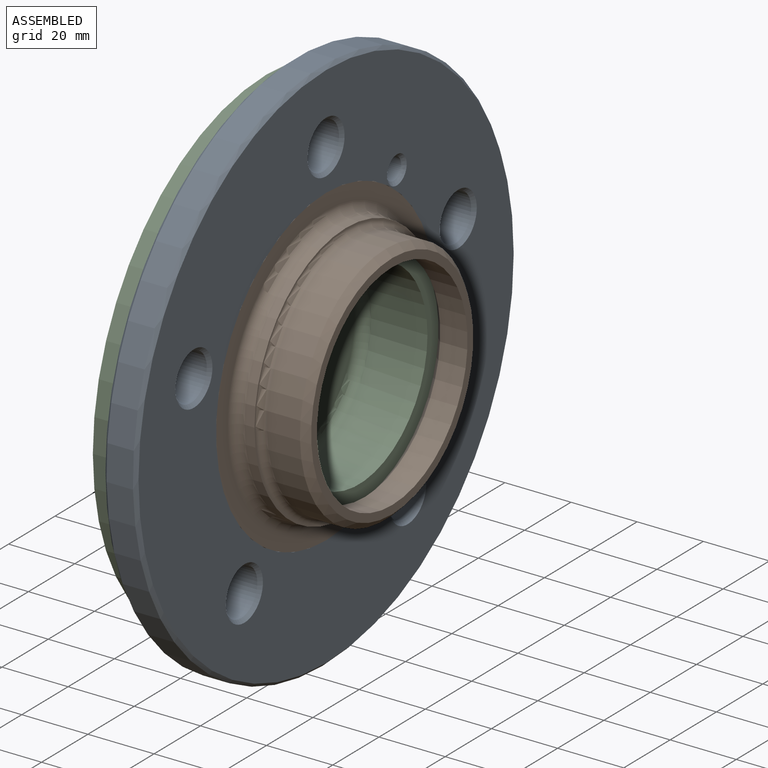
[diagram: assembled view]
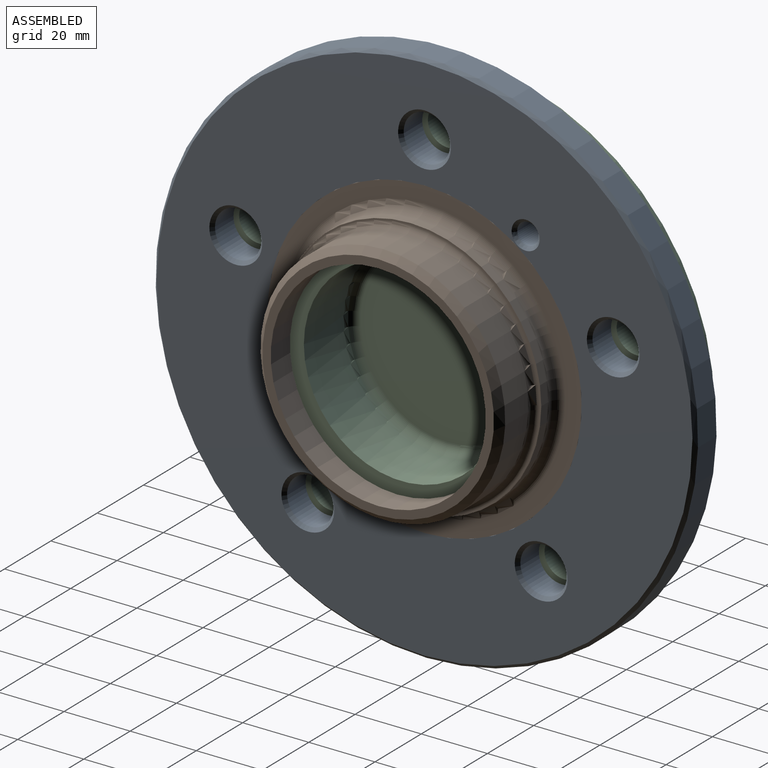
[diagram: assembled view, second angle]
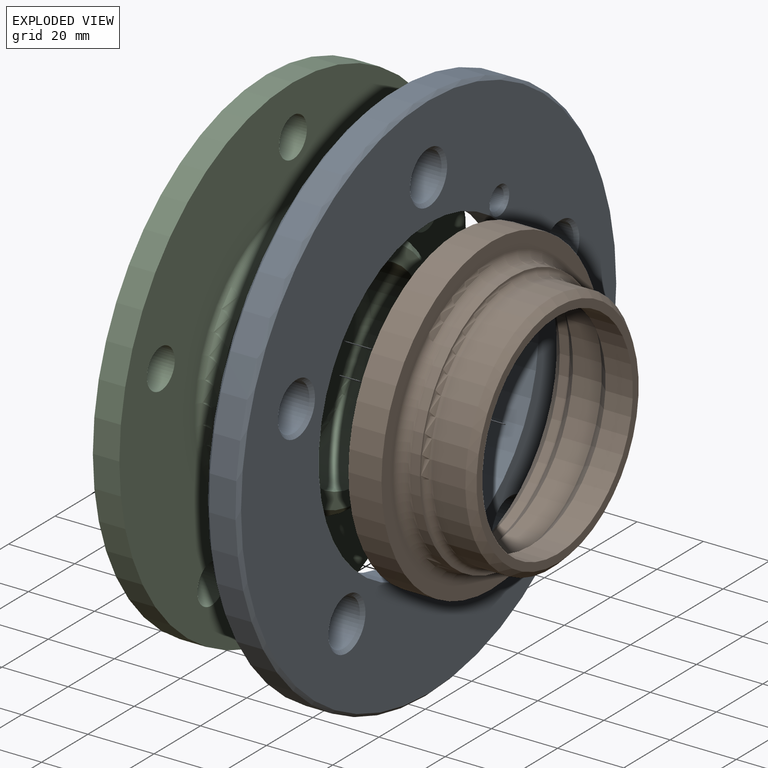
[diagram: exploded view]
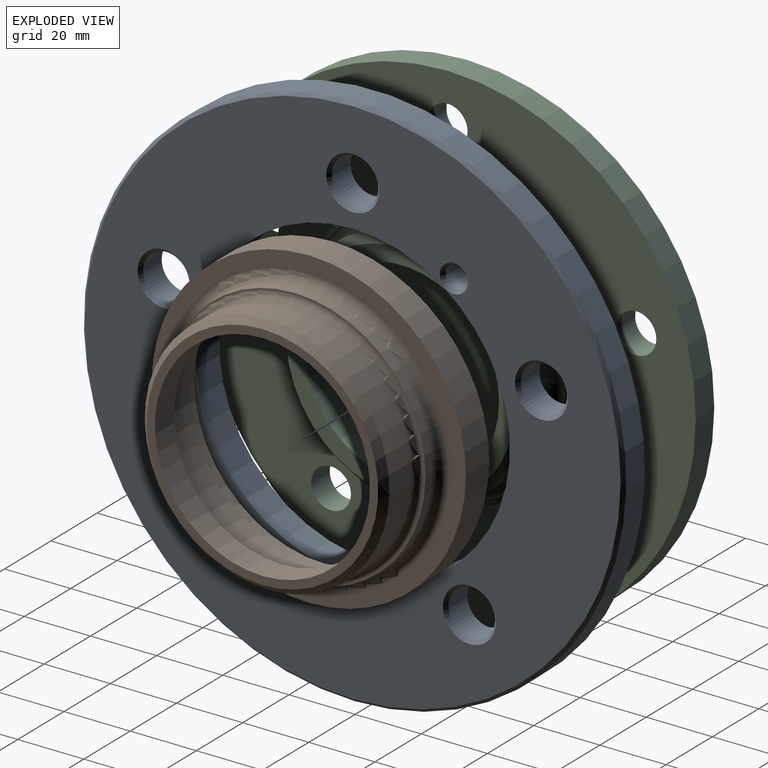
[diagram: exploded view, second angle]
ASSEMBLY  parts=3 mates=2
PART A: 24 faces, bbox 10x164x164 mm
  f0: cone r=8mm half-angle=45deg, axis (1,0,0), area 66.6mm2, adj f2,f14
  f1: cone r=8mm half-angle=45deg, axis (-1,0,0), area 66.6mm2, adj f2,f15
  f2: cylinder r=7mm len=14mm, axis (-1,0,0), area 351.9mm2, adj f0,f1
  f3: cone r=8mm half-angle=45deg, axis (1,0,0), area 66.6mm2, adj f5,f14
  f4: cone r=8mm half-angle=45deg, axis (-1,0,0), area 66.6mm2, adj f5,f15
  f5: cylinder r=7mm len=14mm, axis (-1,0,0), area 351.9mm2, adj f3,f4
  f6: cone r=8mm half-angle=45deg, axis (1,0,0), area 66.6mm2, adj f8,f14
  f7: cone r=8mm half-angle=45deg, axis (-1,0,0), area 66.6mm2, adj f8,f15
  f8: cylinder r=7mm len=14mm, axis (-1,0,0), area 351.9mm2, adj f6,f7
  f9: cone r=8mm half-angle=45deg, axis (1,0,0), area 66.6mm2, adj f11,f14
  f10: cone r=8mm half-angle=45deg, axis (-1,0,0), area 66.6mm2, adj f11,f15
  f11: cylinder r=7mm len=14mm, axis (-1,0,0), area 351.9mm2, adj f9,f10
  f12: cylinder r=47.5mm len=95mm, axis (-1,0,0), area 2984.5mm2, adj f14,f15
  f13: cylinder r=82mm len=164mm, axis (-1,0,0), area 4121.8mm2, adj f22,f23
  f14: plane 162x162mm, normal (1,0,0), area 12461.7mm2, adj f0,f3,f6,f9,f12,f18,f21,f22
  f15: plane 162x162mm, normal (-1,0,0), area 12461.7mm2, adj f1,f4,f7,f10,f12,f17,f20,f23
  f16: cylinder r=7mm len=14mm, axis (-1,0,0), area 351.9mm2, adj f17,f18
  f17: cone r=8mm half-angle=45deg, axis (-1,0,0), area 66.6mm2, adj f15,f16
  f18: cone r=8mm half-angle=45deg, axis (1,0,0), area 66.6mm2, adj f14,f16
  f19: cylinder r=3.25mm len=8mm, axis (-1,0,0), area 163.4mm2, adj f20,f21
  f20: cone r=4.25mm half-angle=45deg, axis (-1,0,0), area 33.3mm2, adj f15,f19
  f21: cone r=4.25mm half-angle=45deg, axis (1,0,0), area 33.3mm2, adj f14,f19
  f22: cone r=81mm half-angle=45deg, axis (-1,0,0), area 724.2mm2, adj f13,f14
  f23: cone r=82mm half-angle=45deg, axis (1,0,0), area 724.2mm2, adj f13,f15
PART B: 16 faces, bbox 30x95x95 mm
  f0: cylinder r=37mm len=74mm, axis (-1,0,0), area 2324.8mm2, adj f13,f15
  f1: plane 79x79mm, normal (1,0,0), area 123.3mm2, adj f2,f15
  f2: cylinder r=39.5mm len=79mm, axis (-1,0,0), area 744.6mm2, adj f1,f14
  f3: plane 95x95mm, normal (1,0,0), area 1413.7mm2, adj f4,f14
  f4: cylinder r=47.5mm len=95mm, axis (-1,0,0), area 2984.5mm2, adj f3,f5
  f5: plane 95x95mm, normal (-1,0,0), area 1413.7mm2, adj f4,f12
  f6: cylinder r=39.5mm len=79mm, axis (-1,0,0), area 744.6mm2, adj f7,f12
  f7: cone r=39.5mm half-angle=45deg, axis (-1,0,0), area 1093.8mm2, adj f6,f8
  f8: cylinder r=36.25mm len=72.5mm, axis (-1,0,0), area 1992.9mm2, adj f7,f9
  f9: cone r=36.25mm half-angle=45deg, axis (-1,0,0), area 1145.4mm2, adj f8,f10
  f10: cylinder r=32.5mm len=65mm, axis (-1,0,0), area 1684.7mm2, adj f9,f11
  f11: plane 70x70mm, normal (1,0,0), area 530.1mm2, adj f10,f13
  f12: cone r=39.5mm half-angle=45deg, axis (-1,0,0), area 1092.9mm2, adj f5,f6
  f13: cone r=37mm half-angle=45deg, axis (-1,0,0), area 639.8mm2, adj f0,f11
  f14: torus R=42.5mm, axis (-1,0,0), area 1201.8mm2, adj f2,f3
  f15: torus R=39mm, axis (-1,0,0), area 744.7mm2, adj f0,f1
PART C: 27 faces, bbox 45x150x150 mm
  f0: cylinder r=75mm len=150mm, axis (1,0,0), area 3769.9mm2, adj f1,f2
  f1: plane 150x150mm, normal (-1,0,0), area 11953mm2, adj f0,f13,f14,f15,f16,f17,f25
  f2: plane 150x150mm, normal (1,0,0), area 11431.5mm2, adj f0,f11,f13,f14,f15,f16,f17
  f3: cylinder r=39.5mm len=79mm, axis (-1,0,0), area 620.5mm2, adj f4,f11
  f4: plane 79x79mm, normal (1,0,0), area 61.9mm2, adj f3,f10
  f5: cylinder r=36.25mm len=72.5mm, axis (-1,0,0), area 2163.8mm2, adj f9,f10
  f6: plane 68.5x68.5mm, normal (1,0,0), area 951.3mm2, adj f8,f9
  f7: plane 53x53mm, normal (1,0,0), area 2206.2mm2, adj f12
  f8: cylinder r=29.5mm len=59mm, axis (-1,0,0), area 3151mm2, adj f6,f12
  f9: cone r=34.25mm half-angle=45deg, axis (-1,0,0), area 626.4mm2, adj f5,f6
  f10: torus R=39.25mm, axis (1,0,0), area 1105.6mm2, adj f4,f5
  f11: torus R=42.5mm, axis (1,0,0), area 1201.8mm2, adj f2,f3
  f12: torus R=26.5mm, axis (1,0,0), area 841.2mm2, adj f7,f8
  f13: cylinder r=6mm len=12mm, axis (1,0,0), area 301.6mm2, adj f1,f2
  f14: cylinder r=6mm len=12mm, axis (1,0,0), area 301.6mm2, adj f1,f2
  f15: cylinder r=6mm len=12mm, axis (1,0,0), area 301.6mm2, adj f1,f2
  f16: cylinder r=6mm len=12mm, axis (1,0,0), area 301.6mm2, adj f1,f2
  f17: cylinder r=6mm len=12mm, axis (1,0,0), area 301.6mm2, adj f1,f2
  f18: cylinder r=37.5mm len=75mm, axis (1,0,0), area 942.5mm2, adj f19,f25
  f19: plane 75x75mm, normal (-1,0,0), area 289.6mm2, adj f18,f20
  f20: cylinder r=36.25mm len=72.5mm, axis (1,0,0), area 1594.4mm2, adj f19,f24
  f21: plane 66.5x66.5mm, normal (-1,0,0), area 1097.4mm2, adj f23,f24
  f22: plane 49x49mm, normal (-1,0,0), area 1885.7mm2, adj f26
  f23: cylinder r=27.5mm len=55mm, axis (1,0,0), area 2419mm2, adj f21,f26
  f24: cone r=33.25mm half-angle=45deg, axis (1,0,0), area 926.3mm2, adj f20,f21
  f25: torus R=40.5mm, axis (1,0,0), area 1142.6mm2, adj f1,f18
  f26: torus R=24.5mm, axis (1,0,0), area 782mm2, adj f22,f23
PLACE A at identity
PLACE B at identity
PLACE C at identity
MATE fastened B.f0 <-> C.f0  axis (-1,0,0) through (0,0,0)mm
MATE fastened A.f12 <-> C.f0  axis (-1,0,0) through (0,0,0)mm
